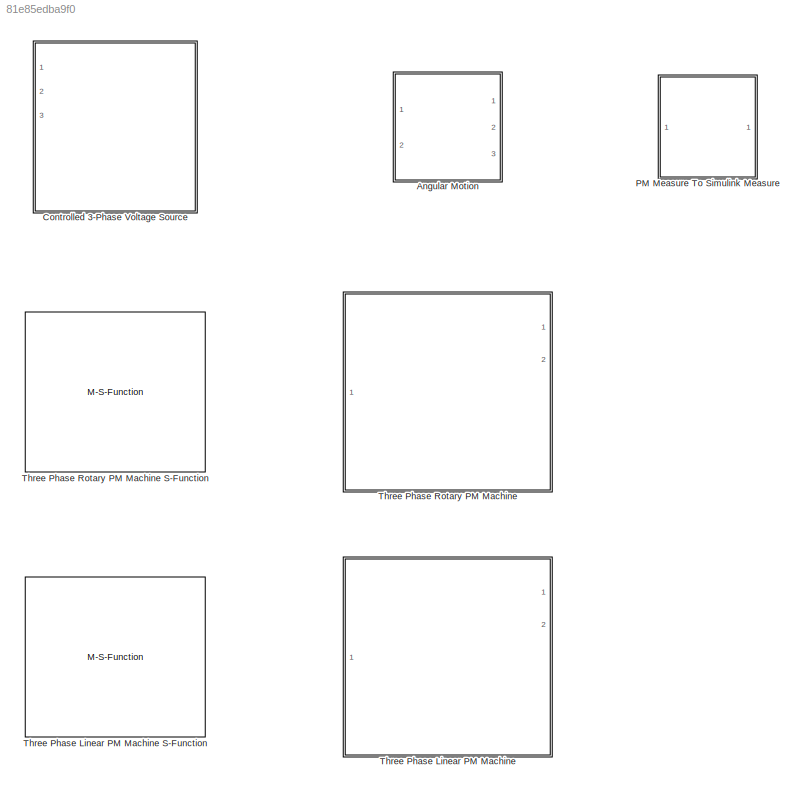
MODEL slx_81e85edba9f0
KIND library
CONFIG AbsTol = auto
CONFIG EnableMultiTasking = on
CONFIG FixedStep = auto
CONFIG MaxStep = auto
CONFIG MinStep = auto
CONFIG RelTol = 1e-3
CONFIG SampleTimeConstraint = Unconstrained
CONFIG Solver = ode45
CONFIG SolverName = ode45
CONFIG StartTime = 0.0
CONFIG StopTime = 10.0
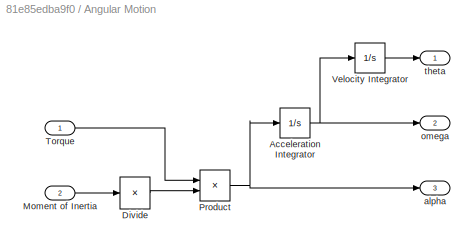
BLOCK [SubSystem] Angular Motion
  Ports = [2, 3]
  RequestExecContextInheritance = off
  Variant = off
BLOCK [Integrator] Angular Motion/Acceleration Integrator
  Ports = [1, 1]
BLOCK [Product] Angular Motion/Divide
  InputSameDT = off
  Inputs = /
  OutDataTypeStr = Inherit: Inherit via internal rule
  Ports = [1, 1]
  RndMeth = Floor
  SaturateOnIntegerOverflow = off
BLOCK [Inport] Angular Motion/Moment of Inertia
  IconDisplay = Port number
  Port = 2
BLOCK [Product] Angular Motion/Product
  InputSameDT = off
  OutDataTypeStr = Inherit: Inherit via internal rule
  Ports = [2, 1]
  SaturateOnIntegerOverflow = off
BLOCK [Inport] Angular Motion/Torque
  IconDisplay = Port number
BLOCK [Integrator] Angular Motion/Velocity Integrator
  Ports = [1, 1]
BLOCK [Outport] Angular Motion/alpha
  IconDisplay = Port number
  Port = 3
BLOCK [Outport] Angular Motion/omega
  IconDisplay = Port number
  Port = 2
BLOCK [Outport] Angular Motion/theta
  IconDisplay = Port number
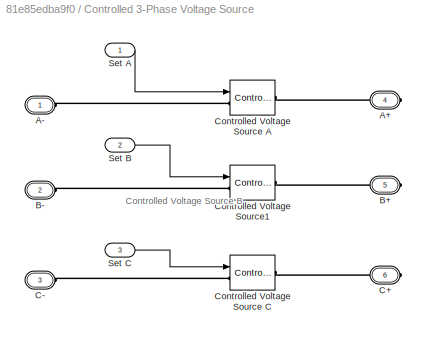
BLOCK [SubSystem] Controlled 3-Phase Voltage Source
  Ports = [3, 0, 0, 0, 0, 3, 3]
  RequestExecContextInheritance = off
  Variant = off
BLOCK [PMIOPort] Controlled 3-Phase Voltage Source/A+
  Port = 4
  Side = Right
  Tag = PMCPort
BLOCK [PMIOPort] Controlled 3-Phase Voltage Source/A-
  Port = 1
  Side = Left
  Tag = PMCPort
BLOCK [PMIOPort] Controlled 3-Phase Voltage Source/B+
  Port = 5
  Side = Right
  Tag = PMCPort
BLOCK [PMIOPort] Controlled 3-Phase Voltage Source/B-
  Port = 2
  Side = Left
  Tag = PMCPort
BLOCK [PMIOPort] Controlled 3-Phase Voltage Source/C+
  Port = 6
  Side = Right
  Tag = PMCPort
BLOCK [PMIOPort] Controlled 3-Phase Voltage Source/C-
  Port = 3
  Side = Left
  Tag = PMCPort
BLOCK [Reference] Controlled 3-Phase Voltage Source/Controlled Voltage Source A  REF=powerlib/Electrical
Sources/Controlled Voltage Source
  Ports = [1, 0, 0, 0, 0, 1, 1]
  SourceBlock = powerlib/Electrical\nSources/Controlled Voltage Source
  SourceType = Controlled Voltage Source
BLOCK [Reference] Controlled 3-Phase Voltage Source/Controlled Voltage Source C  REF=powerlib/Electrical
Sources/Controlled Voltage Source
  Ports = [1, 0, 0, 0, 0, 1, 1]
  SourceBlock = powerlib/Electrical\nSources/Controlled Voltage Source
  SourceType = Controlled Voltage Source
BLOCK [Reference] Controlled 3-Phase Voltage Source/Controlled Voltage Source1  REF=powerlib/Electrical
Sources/Controlled Voltage Source
  Ports = [1, 0, 0, 0, 0, 1, 1]
  SourceBlock = powerlib/Electrical\nSources/Controlled Voltage Source
  SourceType = Controlled Voltage Source
BLOCK [Inport] Controlled 3-Phase Voltage Source/Set A
  IconDisplay = Port number
  PortDimensions = 1
  VarSizeSig = No
BLOCK [Inport] Controlled 3-Phase Voltage Source/Set B
  IconDisplay = Port number
  Port = 2
  PortDimensions = 1
  VarSizeSig = No
BLOCK [Inport] Controlled 3-Phase Voltage Source/Set C
  IconDisplay = Port number
  Port = 3
  PortDimensions = 1
  VarSizeSig = No
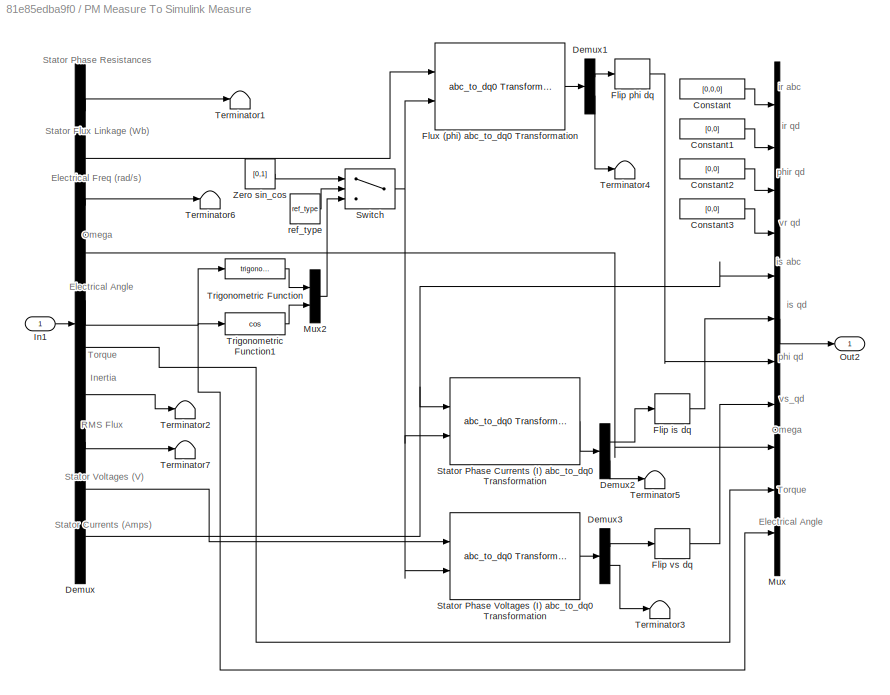
BLOCK [SubSystem] PM Measure To Simulink Measure
  Ports = [1, 1]
  RequestExecContextInheritance = off
  Variant = off
BLOCK [Constant] PM Measure To Simulink Measure/Constant
  Value = [0,0,0]
BLOCK [Constant] PM Measure To Simulink Measure/Constant1
  Value = [0,0]
BLOCK [Constant] PM Measure To Simulink Measure/Constant2
  Value = [0,0]
BLOCK [Constant] PM Measure To Simulink Measure/Constant3
  Value = [0,0]
BLOCK [Demux] PM Measure To Simulink Measure/Demux
  DisplayOption = bar
  Outputs = [3, 3, 1, 1, 1, 1, 1, 1, 3, 3]
  Ports = [1, 10]
BLOCK [Demux] PM Measure To Simulink Measure/Demux1
  DisplayOption = bar
  Outputs = [2,1]
  Ports = [1, 2]
BLOCK [Demux] PM Measure To Simulink Measure/Demux2
  DisplayOption = bar
  Outputs = [2,1]
  Ports = [1, 2]
BLOCK [Demux] PM Measure To Simulink Measure/Demux3
  DisplayOption = bar
  Outputs = [2,1]
  Ports = [1, 2]
BLOCK [DSPFlip] PM Measure To Simulink Measure/Flip is dq
BLOCK [DSPFlip] PM Measure To Simulink Measure/Flip phi dq
BLOCK [DSPFlip] PM Measure To Simulink Measure/Flip vs dq
BLOCK [Reference] PM Measure To Simulink Measure/Flux (phi) abc_to_dq0 Transformation  REF=powerlib_extras/Measurements/abc_to_dq0
Transformation
  Ports = [2, 1]
  SourceBlock = powerlib_extras/Measurements/abc_to_dq0\nTransformation
  SourceType = abc to dq0 Transformation
BLOCK [Inport] PM Measure To Simulink Measure/In1
  IconDisplay = Port number
BLOCK [Mux] PM Measure To Simulink Measure/Mux
  DisplayOption = bar
  Inputs = 11
  Ports = [11, 1]
BLOCK [Mux] PM Measure To Simulink Measure/Mux2
  DisplayOption = bar
  Inputs = 2
  Ports = [2, 1]
BLOCK [Outport] PM Measure To Simulink Measure/Out2
  IconDisplay = Port number
BLOCK [Reference] PM Measure To Simulink Measure/Stator Phase Currents (I) abc_to_dq0 Transformation  REF=powerlib_extras/Measurements/abc_to_dq0
Transformation
  Ports = [2, 1]
  SourceBlock = powerlib_extras/Measurements/abc_to_dq0\nTransformation
  SourceType = abc to dq0 Transformation
BLOCK [Reference] PM Measure To Simulink Measure/Stator Phase Voltages (I) abc_to_dq0 Transformation  REF=powerlib_extras/Measurements/abc_to_dq0
Transformation
  Ports = [2, 1]
  SourceBlock = powerlib_extras/Measurements/abc_to_dq0\nTransformation
  SourceType = abc to dq0 Transformation
BLOCK [Switch] PM Measure To Simulink Measure/Switch
  Criteria = u2 > Threshold
  InputSameDT = off
  SaturateOnIntegerOverflow = off
  Threshold = 1
  ZeroCross = off
BLOCK [Terminator] PM Measure To Simulink Measure/Terminator1
BLOCK [Terminator] PM Measure To Simulink Measure/Terminator2
BLOCK [Terminator] PM Measure To Simulink Measure/Terminator3
BLOCK [Terminator] PM Measure To Simulink Measure/Terminator4
BLOCK [Terminator] PM Measure To Simulink Measure/Terminator5
BLOCK [Terminator] PM Measure To Simulink Measure/Terminator6
BLOCK [Terminator] PM Measure To Simulink Measure/Terminator7
BLOCK [Trigonometry] PM Measure To Simulink Measure/Trigonometric Function
  Ports = [1, 1]
BLOCK [Trigonometry] PM Measure To Simulink Measure/Trigonometric Function1
  Operator = cos
  Ports = [1, 1]
BLOCK [Constant] PM Measure To Simulink Measure/Zero sin_cos
  Value = [0,1]
BLOCK [Constant] PM Measure To Simulink Measure/ref_type
  Value = ref_type
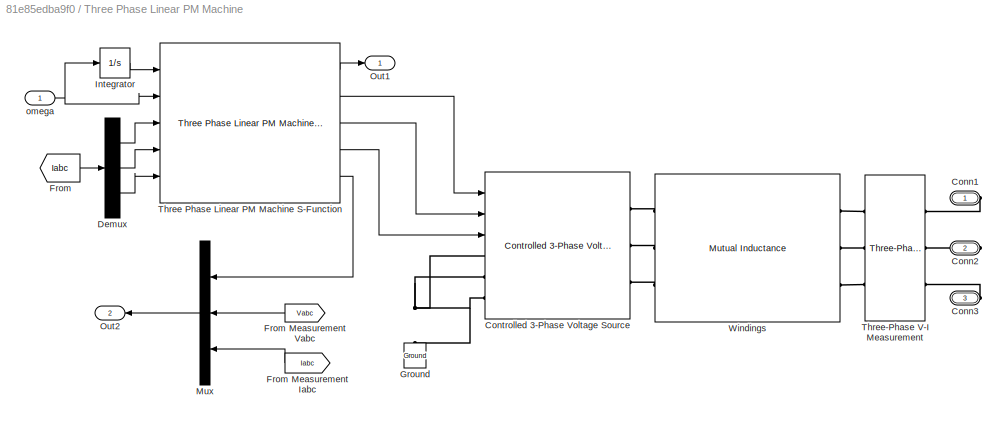
BLOCK [SubSystem] Three Phase Linear PM Machine
  Ports = [1, 2, 0, 0, 0, 0, 3]
  RequestExecContextInheritance = off
  Variant = off
BLOCK [M-S-Function] Three Phase Linear PM Machine S-Function
  FunctionName = lineargen_three_phase_sfcn
  Parameters = design_data_type_popup, file_name_edit, design_workspace_edit, simoptions_workspace_edit
  Ports = [5, 5]
BLOCK [PMIOPort] Three Phase Linear PM Machine/Conn1
  Port = 1
  Side = Right
BLOCK [PMIOPort] Three Phase Linear PM Machine/Conn2
  Port = 2
  Side = Right
BLOCK [PMIOPort] Three Phase Linear PM Machine/Conn3
  Port = 3
  Side = Right
BLOCK [Reference] Three Phase Linear PM Machine/Controlled 3-Phase Voltage Source  REF=pm_machines_library/Controlled 3-Phase Voltage Source  (lib defined in slx_81e85edba9f0)
  Ports = [3, 0, 0, 0, 0, 3, 3]
  SourceBlock = pm_machines_library/Controlled 3-Phase Voltage Source
  SourceType = Controlled 3-Phase Voltage Source
BLOCK [Demux] Three Phase Linear PM Machine/Demux
  DisplayOption = bar
  Outputs = 3
  Ports = [1, 3]
BLOCK [From] Three Phase Linear PM Machine/From
  GotoTag = Iabc
BLOCK [From] Three Phase Linear PM Machine/From Measurement Iabc
  GotoTag = Iabc
BLOCK [From] Three Phase Linear PM Machine/From Measurement Vabc
  GotoTag = Vabc
BLOCK [Reference] Three Phase Linear PM Machine/Ground  REF=powerlib/Elements/Ground
  Ports = [0, 0, 0, 0, 0, 1]
  SourceBlock = powerlib/Elements/Ground
  SourceType = Ground
BLOCK [Integrator] Three Phase Linear PM Machine/Integrator
  Ports = [1, 1]
BLOCK [Mux] Three Phase Linear PM Machine/Mux
  DisplayOption = bar
  Inputs = 3
  Ports = [3, 1]
BLOCK [Outport] Three Phase Linear PM Machine/Out1
  IconDisplay = Port number
BLOCK [Outport] Three Phase Linear PM Machine/Out2
  IconDisplay = Port number
  Port = 2
BLOCK [Reference] Three Phase Linear PM Machine/Three Phase Linear PM Machine S-Function  REF=pm_machines_library/Three Phase Linear PM Machine S-Function  (lib defined in slx_81e85edba9f0)
  Ports = [5, 5]
  SourceBlock = pm_machines_library/Three Phase Linear PM Machine S-Function
BLOCK [Reference] Three Phase Linear PM Machine/Three-Phase V-I Measurement  REF=powerlib/Measurements/Three-Phase
V-I Measurement
  Ports = [0, 0, 0, 0, 0, 3, 3]
  SourceBlock = powerlib/Measurements/Three-Phase\nV-I Measurement
  SourceType = Three-Phase VI Measurement
BLOCK [Reference] Three Phase Linear PM Machine/Windings  REF=powerlib/Elements/Mutual Inductance
  AttributesFormatString = \n
  Ports = [0, 0, 0, 0, 0, 3, 3]
  SourceBlock = powerlib/Elements/Mutual Inductance
  SourceType = Mutual Inductance
BLOCK [Inport] Three Phase Linear PM Machine/omega
  IconDisplay = Port number
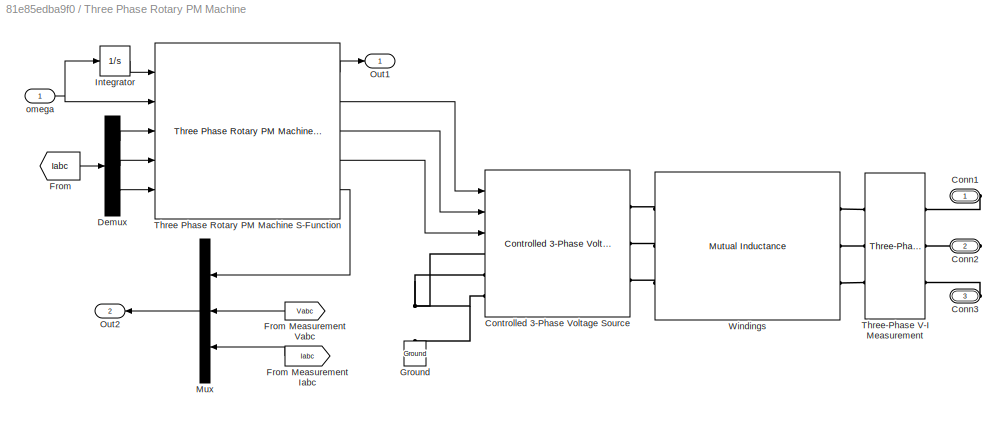
BLOCK [SubSystem] Three Phase Rotary PM Machine
  Ports = [1, 2, 0, 0, 0, 0, 3]
  RequestExecContextInheritance = off
  Variant = off
BLOCK [M-S-Function] Three Phase Rotary PM Machine S-Function
  FunctionName = rotgen_three_phase_sfcn
  Parameters = design_data_type_popup, file_name_edit, design_workspace_edit, simoptions_workspace_edit
  Ports = [5, 5]
BLOCK [PMIOPort] Three Phase Rotary PM Machine/Conn1
  Port = 1
  Side = Right
BLOCK [PMIOPort] Three Phase Rotary PM Machine/Conn2
  Port = 2
  Side = Right
BLOCK [PMIOPort] Three Phase Rotary PM Machine/Conn3
  Port = 3
  Side = Right
BLOCK [Reference] Three Phase Rotary PM Machine/Controlled 3-Phase Voltage Source  REF=pm_machines_library/Controlled 3-Phase Voltage Source  (lib defined in slx_81e85edba9f0)
  Ports = [3, 0, 0, 0, 0, 3, 3]
  SourceBlock = pm_machines_library/Controlled 3-Phase Voltage Source
  SourceType = Controlled 3-Phase Voltage Source
BLOCK [Demux] Three Phase Rotary PM Machine/Demux
  DisplayOption = bar
  Outputs = 3
  Ports = [1, 3]
BLOCK [From] Three Phase Rotary PM Machine/From
  GotoTag = Iabc
BLOCK [From] Three Phase Rotary PM Machine/From Measurement Iabc
  GotoTag = Iabc
BLOCK [From] Three Phase Rotary PM Machine/From Measurement Vabc
  GotoTag = Vabc
BLOCK [Reference] Three Phase Rotary PM Machine/Ground  REF=powerlib/Elements/Ground
  Ports = [0, 0, 0, 0, 0, 1]
  SourceBlock = powerlib/Elements/Ground
  SourceType = Ground
BLOCK [Integrator] Three Phase Rotary PM Machine/Integrator
  Ports = [1, 1]
BLOCK [Mux] Three Phase Rotary PM Machine/Mux
  DisplayOption = bar
  Inputs = 3
  Ports = [3, 1]
BLOCK [Outport] Three Phase Rotary PM Machine/Out1
  IconDisplay = Port number
BLOCK [Outport] Three Phase Rotary PM Machine/Out2
  IconDisplay = Port number
  Port = 2
BLOCK [Reference] Three Phase Rotary PM Machine/Three Phase Rotary PM Machine S-Function  REF=pm_machines_library/Three Phase Rotary PM Machine S-Function  (lib defined in slx_81e85edba9f0)
  Ports = [5, 5]
  SourceBlock = pm_machines_library/Three Phase Rotary PM Machine S-Function
BLOCK [Reference] Three Phase Rotary PM Machine/Three-Phase V-I Measurement  REF=powerlib/Measurements/Three-Phase
V-I Measurement
  Ports = [0, 0, 0, 0, 0, 3, 3]
  SourceBlock = powerlib/Measurements/Three-Phase\nV-I Measurement
  SourceType = Three-Phase VI Measurement
BLOCK [Reference] Three Phase Rotary PM Machine/Windings  REF=powerlib/Elements/Mutual Inductance
  AttributesFormatString = \n
  Ports = [0, 0, 0, 0, 0, 3, 3]
  SourceBlock = powerlib/Elements/Mutual Inductance
  SourceType = Mutual Inductance
BLOCK [Inport] Three Phase Rotary PM Machine/omega
  IconDisplay = Port number
ANNOTATION Controlled 3-Phase Voltage Source: Controlled Voltage Source B
ANNOTATION PM Measure To Simulink Measure: Electrical Angle
ANNOTATION PM Measure To Simulink Measure: Electrical Freq (rad/s)
ANNOTATION PM Measure To Simulink Measure: Inertia
ANNOTATION PM Measure To Simulink Measure: Omega
ANNOTATION PM Measure To Simulink Measure: RMS Flux
ANNOTATION PM Measure To Simulink Measure: Stator Currents (Amps)
ANNOTATION PM Measure To Simulink Measure: Stator Flux Linkage (Wb)
ANNOTATION PM Measure To Simulink Measure: Stator Phase Resistances
ANNOTATION PM Measure To Simulink Measure: Stator Voltages (V)
ANNOTATION PM Measure To Simulink Measure: Torque
ANNOTATION PM Measure To Simulink Measure: ir abc
ANNOTATION PM Measure To Simulink Measure: ir qd
ANNOTATION PM Measure To Simulink Measure: is abc
ANNOTATION PM Measure To Simulink Measure: is qd
ANNOTATION PM Measure To Simulink Measure: phi qd
ANNOTATION PM Measure To Simulink Measure: phir qd
ANNOTATION PM Measure To Simulink Measure: vr qd
ANNOTATION PM Measure To Simulink Measure: vs_qd
NET Angular Motion/Acceleration Integrator:1 -> Angular Motion/Velocity Integrator:1, Angular Motion/omega:1
LINE Angular Motion/Divide:1 -> Angular Motion/Product:2
LINE Angular Motion/Moment of Inertia:1 -> Angular Motion/Divide:1
NET Angular Motion/Product:1 -> Angular Motion/Acceleration Integrator:1, Angular Motion/alpha:1
LINE Angular Motion/Torque:1 -> Angular Motion/Product:1
LINE Angular Motion/Velocity Integrator:1 -> Angular Motion/theta:1
LINE Controlled 3-Phase Voltage Source/Set A:1 -> Controlled 3-Phase Voltage Source/Controlled Voltage Source A:1
LINE Controlled 3-Phase Voltage Source/Set B:1 -> Controlled 3-Phase Voltage Source/Controlled Voltage Source1:1
LINE Controlled 3-Phase Voltage Source/Set C:1 -> Controlled 3-Phase Voltage Source/Controlled Voltage Source C:1
LINE PM Measure To Simulink Measure/Constant1:1 -> PM Measure To Simulink Measure/Mux:2
LINE PM Measure To Simulink Measure/Constant2:1 -> PM Measure To Simulink Measure/Mux:3
LINE PM Measure To Simulink Measure/Constant3:1 -> PM Measure To Simulink Measure/Mux:4
LINE PM Measure To Simulink Measure/Constant:1 -> PM Measure To Simulink Measure/Mux:1
LINE PM Measure To Simulink Measure/Demux1:1 -> PM Measure To Simulink Measure/Flip phi dq:1
LINE PM Measure To Simulink Measure/Demux1:2 -> PM Measure To Simulink Measure/Terminator4:1
LINE PM Measure To Simulink Measure/Demux2:1 -> PM Measure To Simulink Measure/Flip is dq:1
LINE PM Measure To Simulink Measure/Demux2:2 -> PM Measure To Simulink Measure/Terminator5:1
LINE PM Measure To Simulink Measure/Demux3:1 -> PM Measure To Simulink Measure/Flip vs dq:1
LINE PM Measure To Simulink Measure/Demux3:2 -> PM Measure To Simulink Measure/Terminator3:1
LINE PM Measure To Simulink Measure/Demux:1 -> PM Measure To Simulink Measure/Terminator1:1
NET PM Measure To Simulink Measure/Demux:10 -> PM Measure To Simulink Measure/Mux:5, PM Measure To Simulink Measure/Stator Phase Currents (I) abc_to_dq0 Transformation:1
LINE PM Measure To Simulink Measure/Demux:2 -> PM Measure To Simulink Measure/Flux (phi) abc_to_dq0 Transformation:1
LINE PM Measure To Simulink Measure/Demux:3 -> PM Measure To Simulink Measure/Terminator6:1
LINE PM Measure To Simulink Measure/Demux:4 -> PM Measure To Simulink Measure/Mux:9
NET PM Measure To Simulink Measure/Demux:5 -> PM Measure To Simulink Measure/Mux:11, PM Measure To Simulink Measure/Trigonometric Function1:1, PM Measure To Simulink Measure/Trigonometric Function:1
LINE PM Measure To Simulink Measure/Demux:6 -> PM Measure To Simulink Measure/Mux:10
LINE PM Measure To Simulink Measure/Demux:7 -> PM Measure To Simulink Measure/Terminator2:1
LINE PM Measure To Simulink Measure/Demux:8 -> PM Measure To Simulink Measure/Terminator7:1
LINE PM Measure To Simulink Measure/Demux:9 -> PM Measure To Simulink Measure/Stator Phase Voltages (I) abc_to_dq0 Transformation:1
LINE PM Measure To Simulink Measure/Flip is dq:1 -> PM Measure To Simulink Measure/Mux:6
LINE PM Measure To Simulink Measure/Flip phi dq:1 -> PM Measure To Simulink Measure/Mux:7
LINE PM Measure To Simulink Measure/Flip vs dq:1 -> PM Measure To Simulink Measure/Mux:8
LINE PM Measure To Simulink Measure/Flux (phi) abc_to_dq0 Transformation:1 -> PM Measure To Simulink Measure/Demux1:1
LINE PM Measure To Simulink Measure/In1:1 -> PM Measure To Simulink Measure/Demux:1
LINE PM Measure To Simulink Measure/Mux2:1 -> PM Measure To Simulink Measure/Switch:3
LINE PM Measure To Simulink Measure/Mux:1 -> PM Measure To Simulink Measure/Out2:1
LINE PM Measure To Simulink Measure/Stator Phase Currents (I) abc_to_dq0 Transformation:1 -> PM Measure To Simulink Measure/Demux2:1
LINE PM Measure To Simulink Measure/Stator Phase Voltages (I) abc_to_dq0 Transformation:1 -> PM Measure To Simulink Measure/Demux3:1
NET PM Measure To Simulink Measure/Switch:1 -> PM Measure To Simulink Measure/Flux (phi) abc_to_dq0 Transformation:2, PM Measure To Simulink Measure/Stator Phase Currents (I) abc_to_dq0 Transformation:2, PM Measure To Simulink Measure/Stator Phase Voltages (I) abc_to_dq0 Transformation:2
LINE PM Measure To Simulink Measure/Trigonometric Function1:1 -> PM Measure To Simulink Measure/Mux2:2
LINE PM Measure To Simulink Measure/Trigonometric Function:1 -> PM Measure To Simulink Measure/Mux2:1
LINE PM Measure To Simulink Measure/Zero sin_cos:1 -> PM Measure To Simulink Measure/Switch:1
LINE PM Measure To Simulink Measure/ref_type:1 -> PM Measure To Simulink Measure/Switch:2
PLINE Controlled 3-Phase Voltage Source/A+:RConn1 -- Controlled 3-Phase Voltage Source/Controlled Voltage Source A:RConn1
PLINE Controlled 3-Phase Voltage Source/A-:RConn1 -- Controlled 3-Phase Voltage Source/Controlled Voltage Source A:LConn1
PLINE Controlled 3-Phase Voltage Source/B+:RConn1 -- Controlled 3-Phase Voltage Source/Controlled Voltage Source1:RConn1
PLINE Controlled 3-Phase Voltage Source/B-:RConn1 -- Controlled 3-Phase Voltage Source/Controlled Voltage Source1:LConn1
PLINE Controlled 3-Phase Voltage Source/C+:RConn1 -- Controlled 3-Phase Voltage Source/Controlled Voltage Source C:RConn1
PLINE Controlled 3-Phase Voltage Source/C-:RConn1 -- Controlled 3-Phase Voltage Source/Controlled Voltage Source C:LConn1
note: NET lines group one-source signal fan-out (src -> all destinations, sorted); 1:1 wires keep LINE
